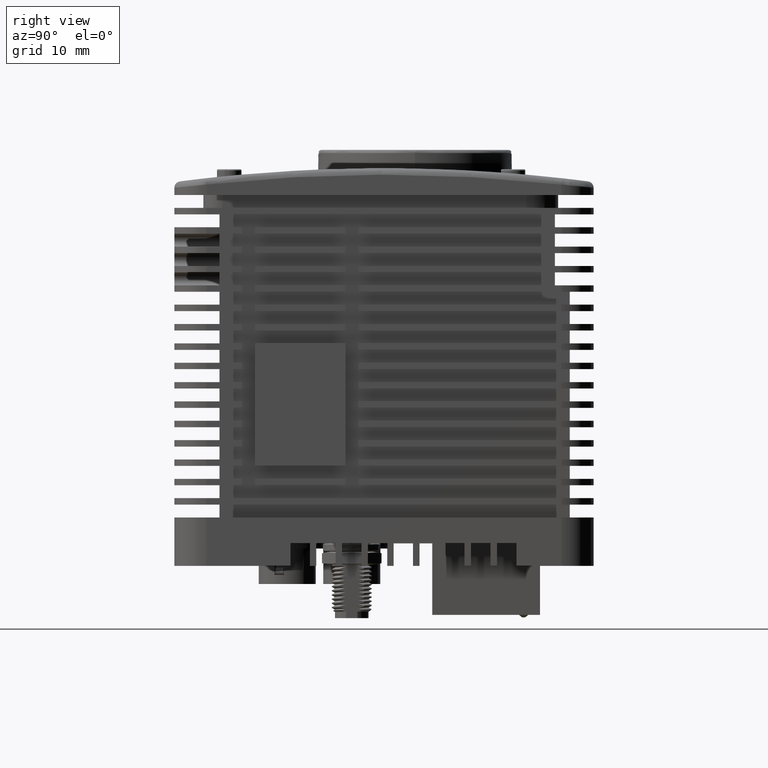
[diagram: clean part render]
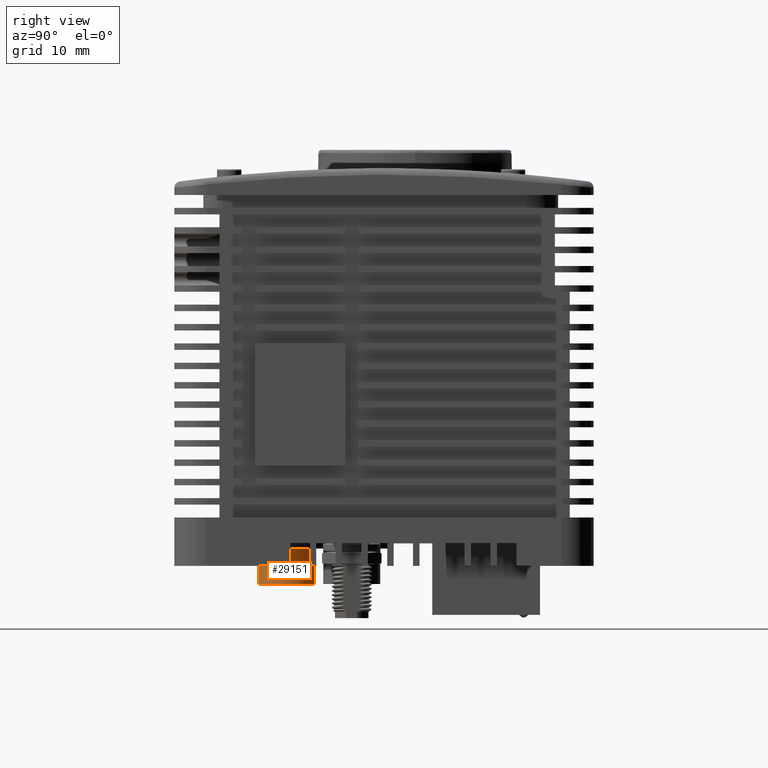
[diagram: same view with one face highlighted and labeled with its STEP entity id]
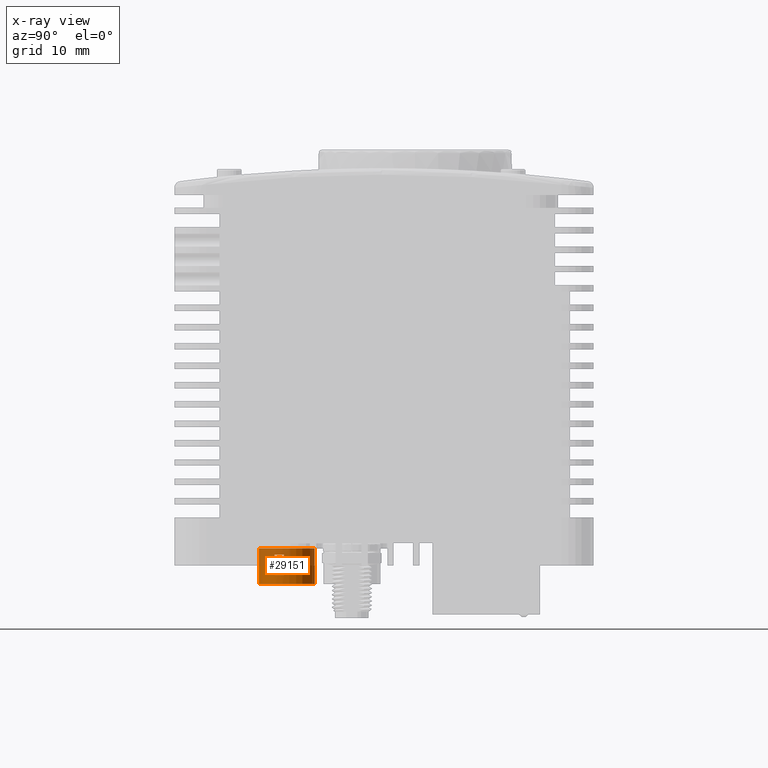
[diagram: x-ray of the same camera — body ghosted, the highlighted face saturated]
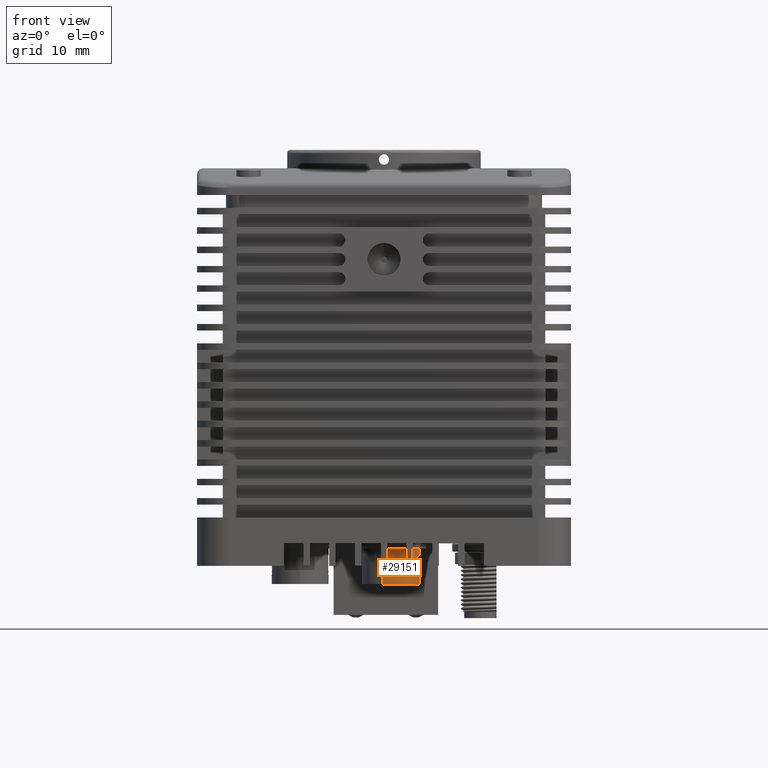
[diagram: same view with one face highlighted and labeled with its STEP entity id]
A machine part, right view. The second image highlights one B-rep face of the part: STEP entity #29151.
The next image is the same camera in x-ray: the body ghosted, the highlighted face saturated — about 29% of this face is hidden behind the body in this view.
A second angle (front view) of the same face is appended — the face is thin or edge-on in the first view.
In plain terms, the highlighted cylindrical surface (edge-blend (fillet) strip) has radius 4.425 mm, axis along (0, 0, -1).
Its self-contained STEP definition (entity closure, byte-faithful):
#846 = EDGE_LOOP ( 'NONE', ( #25179, #10311, #4423, #38282 ) ) ;
#1256 = VERTEX_POINT ( 'NONE', #38685 ) ;
#3121 = VERTEX_POINT ( 'NONE', #7956 ) ;
#3927 = CARTESIAN_POINT ( 'NONE',  ( -4.864032414065260213, -10.00877100774558137, -44.29999999999999716 ) ) ;
#4423 = ORIENTED_EDGE ( 'NONE', *, *, #31720, .T. ) ;
#4667 = ORIENTED_EDGE ( 'NONE', *, *, #46852, .T. ) ;
#5144 = CARTESIAN_POINT ( 'NONE',  ( -2.143162850981420231, -16.20519084670775456, -44.29999699999999763 ) ) ;
#5535 = CYLINDRICAL_SURFACE ( 'NONE', #74766, 4.425000000000001599 ) ;
#6360 = VECTOR ( 'NONE', #10280, 1000.000000000000000 ) ;
#6564 = AXIS2_PLACEMENT_3D ( 'NONE', #39804, #51340, #20742 ) ;
#6918 = VECTOR ( 'NONE', #29390, 1000.000000000000000 ) ;
#7956 = CARTESIAN_POINT ( 'NONE',  ( -7.364891869718737993, -18.49807027111641844, -49.79999999999999716 ) ) ;
#7963 = DIRECTION ( 'NONE',  ( 0.000000000000000000, 0.000000000000000000, -1.000000000000000000 ) ) ;
#8016 = EDGE_CURVE ( 'NONE', #58994, #26879, #59561, .T. ) ;
#10280 = DIRECTION ( 'NONE',  ( 0.000000000000000000, 0.000000000000000000, -1.000000000000000000 ) ) ;
#10311 = ORIENTED_EDGE ( 'NONE', *, *, #8016, .T. ) ;
#10949 = CARTESIAN_POINT ( 'NONE',  ( -1.719288366972355542, -14.76632656478049377, -48.39999999999999858 ) ) ;
#12190 = CARTESIAN_POINT ( 'NONE',  ( -6.114462141891999991, -14.25342063943100079, -44.29999999999999716 ) ) ;
#12750 = CARTESIAN_POINT ( 'NONE',  ( -6.114462141891999991, -14.25342063943100079, -48.39999999999999858 ) ) ;
#15078 = CARTESIAN_POINT ( 'NONE',  ( -6.114462141891999991, -14.25342063943100079, -45.29999999999999716 ) ) ;
#16211 = CARTESIAN_POINT ( 'NONE',  ( -7.364891869718737993, -18.49807027111641844, -44.29999699999999763 ) ) ;
#17438 = FACE_BOUND ( 'NONE', #846, .T. ) ;
#19251 = CIRCLE ( 'NONE', #6564, 4.425000000000001599 ) ;
#19866 = DIRECTION ( 'NONE',  ( 0.2825829893393759229, 0.9592428546181733795, 0.000000000000000000 ) ) ;
#20742 = DIRECTION ( 'NONE',  ( 0.2825829893393759229, 0.9592428546181733795, 0.000000000000000000 ) ) ;
#23410 = DIRECTION ( 'NONE',  ( 0.000000000000000000, 0.000000000000000000, -1.000000000000000000 ) ) ;
#24081 = EDGE_CURVE ( 'NONE', #72895, #58994, #70615, .T. ) ;
#24809 = CIRCLE ( 'NONE', #41149, 4.425000000000001599 ) ;
#25179 = ORIENTED_EDGE ( 'NONE', *, *, #24081, .T. ) ;
#25666 = EDGE_LOOP ( 'NONE', ( #50987, #43586, #4667, #38730 ) ) ;
#26879 = VERTEX_POINT ( 'NONE', #34247 ) ;
#28594 = FACE_OUTER_BOUND ( 'NONE', #25666, .T. ) ;
#28712 = DIRECTION ( 'NONE',  ( 0.000000000000000000, 0.000000000000000000, -1.000000000000000000 ) ) ;
#29151 = ADVANCED_FACE ( 'NONE', ( #17438, #28594 ), #5535, .T. ) ;
#29390 = DIRECTION ( 'NONE',  ( 0.000000000000000000, 0.000000000000000000, 1.000000000000000000 ) ) ;
#30687 = DIRECTION ( 'NONE',  ( 0.000000000000000000, 0.000000000000000000, -1.000000000000000000 ) ) ;
#31118 = DIRECTION ( 'NONE',  ( 0.000000000000000000, 0.000000000000000000, 1.000000000000000000 ) ) ;
#31720 = EDGE_CURVE ( 'NONE', #26879, #1256, #48662, .T. ) ;
#34247 = CARTESIAN_POINT ( 'NONE',  ( -2.143162850981420231, -16.20519084670775456, -45.29999999999999716 ) ) ;
#35738 = CARTESIAN_POINT ( 'NONE',  ( -6.114462141891999991, -14.25342063943100079, -44.29999699999999763 ) ) ;
#36403 = AXIS2_PLACEMENT_3D ( 'NONE', #12750, #7963, #19866 ) ;
#36418 = DIRECTION ( 'NONE',  ( 0.2825829893393759229, 0.9592428546181733795, 0.000000000000000000 ) ) ;
#38282 = ORIENTED_EDGE ( 'NONE', *, *, #54467, .T. ) ;
#38685 = CARTESIAN_POINT ( 'NONE',  ( -1.719288366972355542, -14.76632656478049377, -45.29999999999999716 ) ) ;
#38730 = ORIENTED_EDGE ( 'NONE', *, *, #54494, .F. ) ;
#39804 = CARTESIAN_POINT ( 'NONE',  ( -6.114462141891999991, -14.25342063943100079, -49.79999999999999716 ) ) ;
#40232 = CARTESIAN_POINT ( 'NONE',  ( -1.719288366972355542, -14.76632656478049377, -44.29999699999999763 ) ) ;
#40816 = DIRECTION ( 'NONE',  ( 0.000000000000000000, 0.000000000000000000, -1.000000000000000000 ) ) ;
#40830 = VERTEX_POINT ( 'NONE', #3927 ) ;
#41149 = AXIS2_PLACEMENT_3D ( 'NONE', #12190, #40816, #36418 ) ;
#43586 = ORIENTED_EDGE ( 'NONE', *, *, #61132, .T. ) ;
#46802 = LINE ( 'NONE', #16211, #6360 ) ;
#46852 = EDGE_CURVE ( 'NONE', #3121, #52511, #19251, .T. ) ;
#47629 = DIRECTION ( 'NONE',  ( 0.2825829893393759229, 0.9592428546181733795, 0.000000000000000000 ) ) ;
#47739 = LINE ( 'NONE', #49319, #63927 ) ;
#48662 = CIRCLE ( 'NONE', #70199, 4.425000000000001599 ) ;
#48775 = VERTEX_POINT ( 'NONE', #73033 ) ;
#49319 = CARTESIAN_POINT ( 'NONE',  ( -4.864032414065260213, -10.00877100774558137, -44.29999699999999763 ) ) ;
#49378 = DIRECTION ( 'NONE',  ( 0.2825829893393819736, 0.9592428546181714921, 0.000000000000000000 ) ) ;
#49990 = VECTOR ( 'NONE', #28712, 1000.000000000000000 ) ;
#50987 = ORIENTED_EDGE ( 'NONE', *, *, #57315, .T. ) ;
#51340 = DIRECTION ( 'NONE',  ( 0.000000000000000000, 0.000000000000000000, 1.000000000000000000 ) ) ;
#52511 = VERTEX_POINT ( 'NONE', #70154 ) ;
#54467 = EDGE_CURVE ( 'NONE', #1256, #72895, #65623, .T. ) ;
#54494 = EDGE_CURVE ( 'NONE', #40830, #52511, #47739, .T. ) ;
#57315 = EDGE_CURVE ( 'NONE', #40830, #48775, #24809, .T. ) ;
#58994 = VERTEX_POINT ( 'NONE', #74902 ) ;
#59561 = LINE ( 'NONE', #5144, #6918 ) ;
#61132 = EDGE_CURVE ( 'NONE', #48775, #3121, #46802, .T. ) ;
#63927 = VECTOR ( 'NONE', #30687, 1000.000000000000000 ) ;
#65623 = LINE ( 'NONE', #40232, #49990 ) ;
#70154 = CARTESIAN_POINT ( 'NONE',  ( -4.864032414065260213, -10.00877100774558137, -49.79999999999999716 ) ) ;
#70199 = AXIS2_PLACEMENT_3D ( 'NONE', #15078, #31118, #49378 ) ;
#70615 = CIRCLE ( 'NONE', #36403, 4.425000000000001599 ) ;
#72895 = VERTEX_POINT ( 'NONE', #10949 ) ;
#73033 = CARTESIAN_POINT ( 'NONE',  ( -7.364891869718737993, -18.49807027111641844, -44.29999999999999716 ) ) ;
#74766 = AXIS2_PLACEMENT_3D ( 'NONE', #35738, #23410, #47629 ) ;
#74902 = CARTESIAN_POINT ( 'NONE',  ( -2.143162850981420231, -16.20519084670775456, -48.39999999999999858 ) ) ;